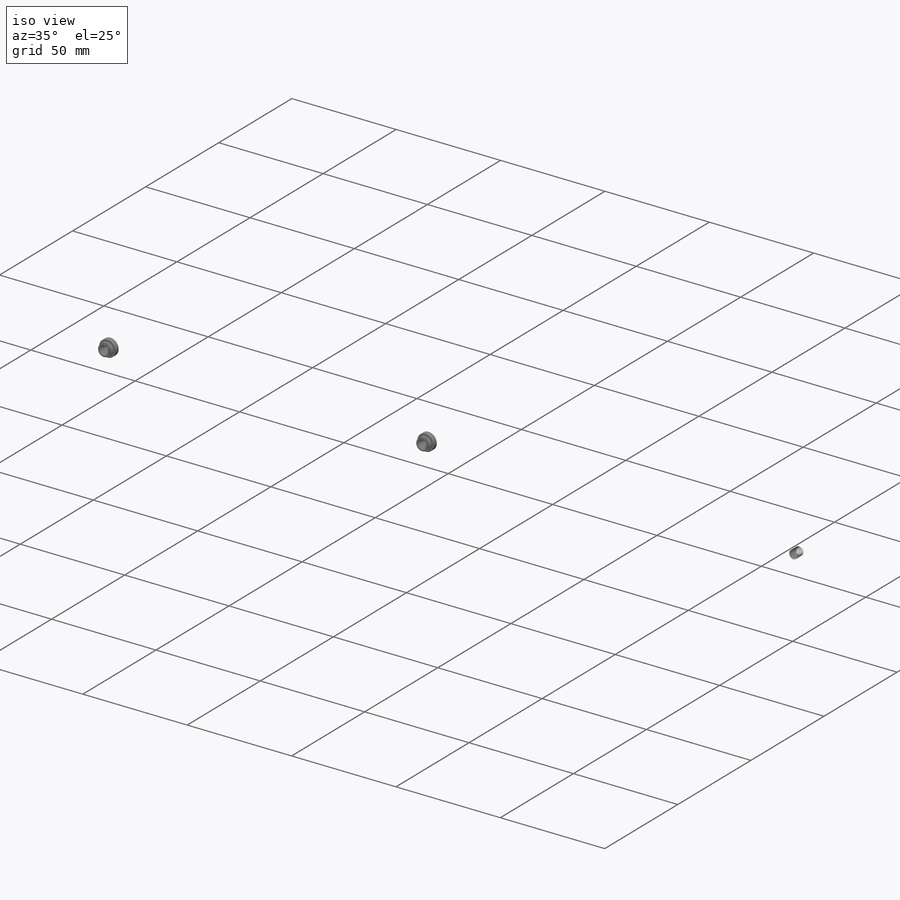
[diagram: iso view]
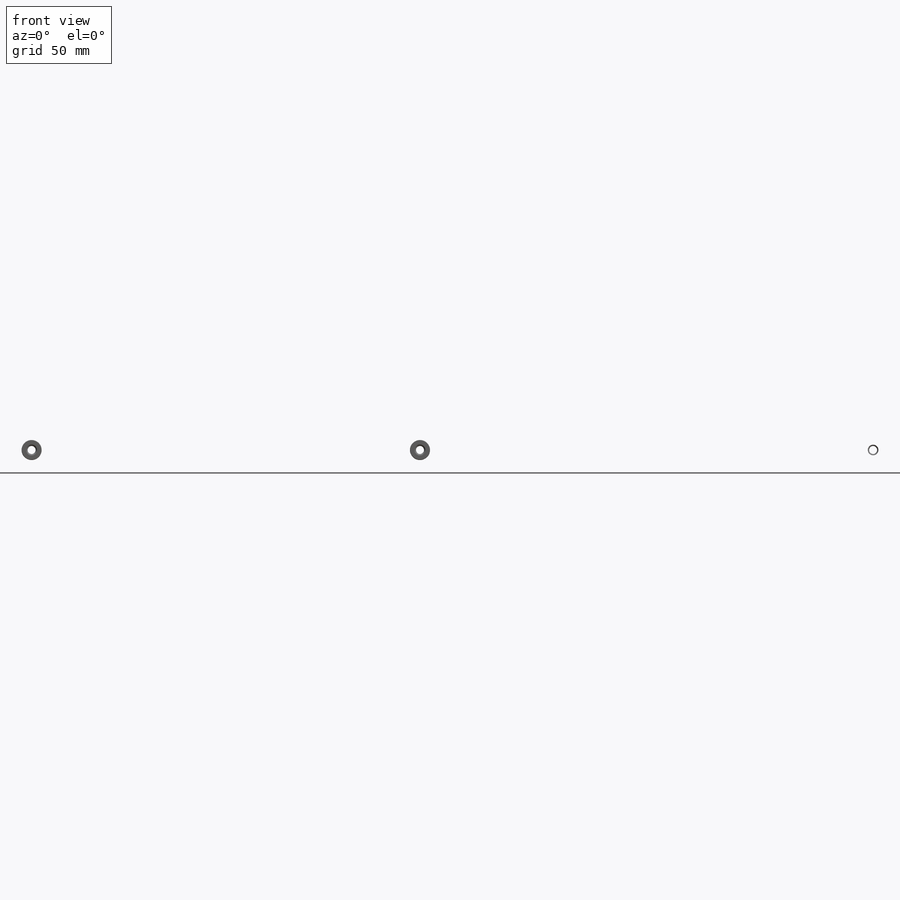
[diagram: front view]
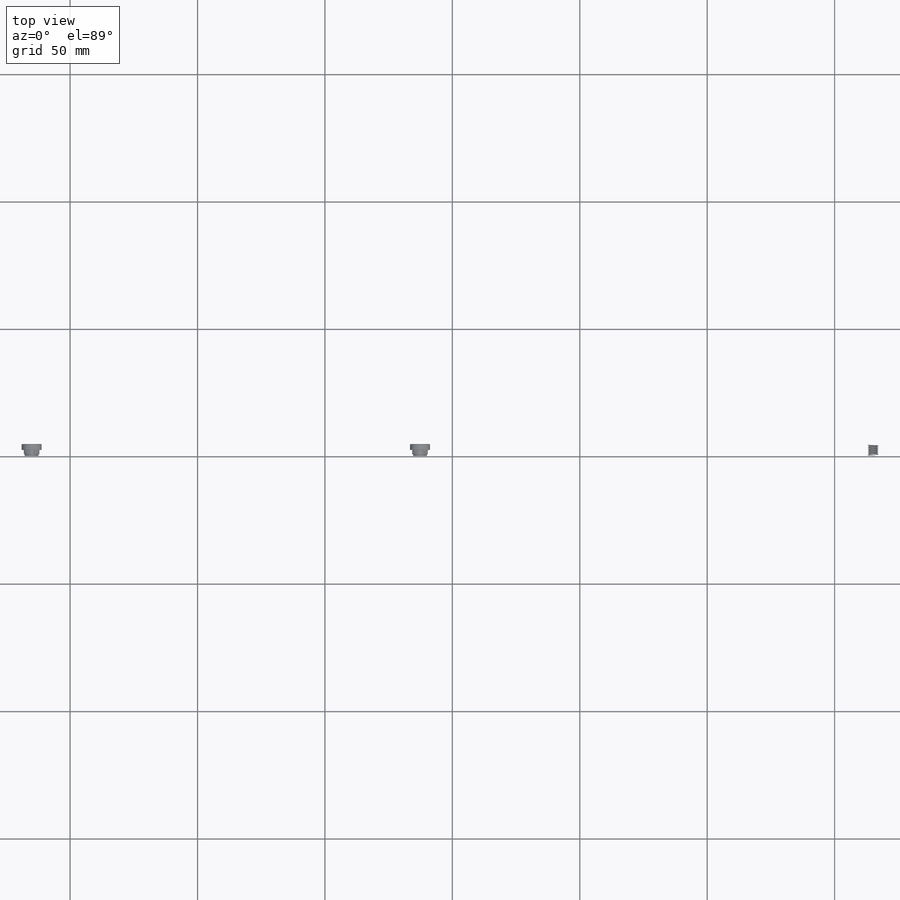
[diagram: top view]
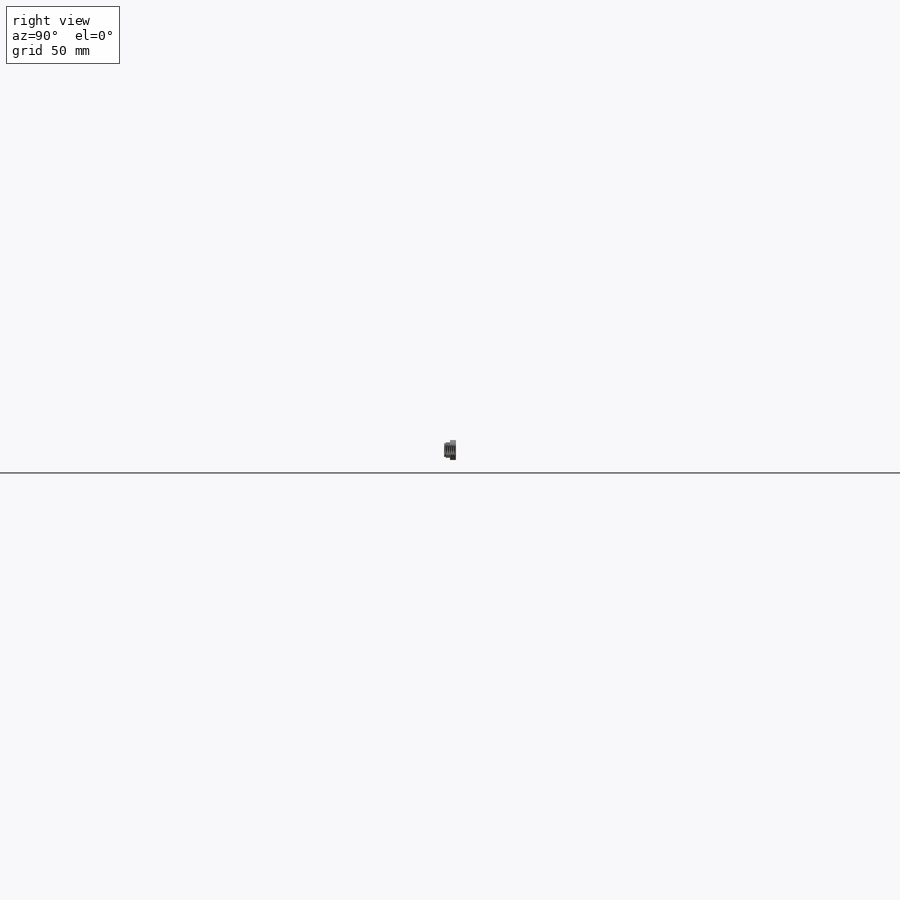
[diagram: right view]
SOLIDWORKS PART (.sldprt)
format: sldprt  version: not decoded by parser v0  size: 11,317,248 bytes
history: native  units: mm
features: sketch x23, extrude x11, move_body x11, cut_extrude x10, fillet x4, mirror x4, plane x2, material x1 + 11 further entries (+67 scaffold rows collapsed; 55 parser-record rows omitted)
feature tree (199):
  scaffold x67  (default folders/planes/origin — collapsed)
  material  "Material <not specified>"
  sketch  "Sketch1"
  extrude  "Boss-Extrude1"  [1 undecoded]
  sketch  "Sketch2"  dims[c1.D1=5.4102mm c1.D2=15.875mm c1.D3=15.875mm c2.D2=12.7mm c2.D3=12.7mm]
  cut_extrude  "Cut-Extrude1"  Depth=508mm
  sketch  "Sketch3"  dims[D1=5.4102mm D2=76.2mm]
  cut_extrude  "Cut-Extrude2"  Depth=5.08mm
  sketch  "Sketch5"  dims[D1=5.4102mm]
  cut_extrude  "Cut-Extrude4"  Depth=12.7mm
  sketch  "Sketch6"  dims[D1=0.0mm]
  extrude  "Boss-Extrude2"  [1 undecoded]
  sketch  "Sketch7"  dims[D1=0.0mm]
  extrude  "Boss-Extrude3"  [1 undecoded]
  sketch  "Sketch8"
  cut_extrude  "Cut-Extrude5"  [1 undecoded]
  sketch  "Sketch11"  dims[c1.D2=5.4102mm c1.D3=5.4102mm c1.D6=5.4102mm c1.D1=19.05mm c1.D4=19.05mm c1.D5=12.7mm c2.D4=19.05mm c2.D6=12.7mm c2.D7=12.7mm c2.D8=19.05mm c3.D7=19.05mm]
  extrude  "Boss-Extrude4"  Depth=2.54mm
  sketch  "Sketch12"  dims[c1.D1=38.1mm c1.D2=3.175mm c2.D1=0.0mm c2.D2=0.0mm]
  extrude  "Boss-Extrude5"  Depth=2.54mm
  sketch  "Sketch13"
  extrude  "Boss-Extrude6"  [1 undecoded]
  sketch  "Sketch16"  dims[D1=25.4mm D2=12.7mm D3=25.4mm D4=19.05mm]
  extrude  "Boss-Extrude7"  [1 undecoded]
  fillet  "Fillet4"  Radius=6.35mm
  sketch  "Sketch17"  dims[D1=6.604mm]
  cut_extrude  "Cut-Extrude8"  Depth=5.08mm
  "96439A360"
  parser-record x55  (decoder bookkeeping rows leaked as tree rows — omitted from the tree; the rows remain in map.json)
  move_body  "Body-Move/Copy4"
  "96439A3602"
  move_body  "Body-Move/Copy6"
  "96439A3603"
  move_body  "Body-Move/Copy8"
  "96439A3604"
  move_body  "Body-Move/Copy10"
  "96439A3605"
  move_body  "Body-Move/Copy12"
  plane  "Plane1"
  mirror  "Mirror3"
  "96439A3607"
  move_body  "Body-Move/Copy18"
  "96439A3608"
  move_body  "Body-Move/Copy20"
  sketch  "Sketch18"
  "96439A3609"
  move_body  "Body-Move/Copy22"
  sketch  "Sketch21"  dims[D1=12.7mm]
  cut_extrude  "Cut-Extrude11"  Depth=7.62mm
  sketch  "Sketch22"
  extrude  "Boss-Extrude9"  [1 undecoded]
  mirror  "Mirror4"
  plane  "Plane2"
  mirror  "Mirror5"
  sketch  "Sketch23"  dims[D1=4.7625mm D2=25.4mm D3=25.4mm D4=22.988mm]
  cut_extrude  "Cut-Extrude12"  Depth=7.62mm
  sketch  "Sketch26"
  extrude  "Boss-Extrude11"  [1 undecoded]
  sketch  "Sketch9"  dims[D1=25.4mm D2=25.4mm]
  cut_extrude  "Cut-Extrude6"  [1 undecoded]
  sketch  "Sketch27"  dims[D1=6.604mm]
  cut_extrude  "Cut-Extrude13"  Depth=12.7mm
  fillet  "Fillet5"  Radius=6.35mm
  sketch  "Sketch30"
  sketch  "Sketch31"  dims[D1=6.35mm D2=25.4mm D3=19.05mm]
  extrude  "Boss-Extrude12"  Depth=2.54mm
  fillet  "Fillet6"  Radius=6.35mm
  sketch  "Sketch32"  dims[D1=19.05mm D2=25.4mm]
  extrude  "Boss-Extrude13"  Depth=2.54mm
  fillet  "Fillet7"  Radius=6.35mm
  "96439A36010"
  move_body  "Body-Move/Copy24"
  "96439A36011"
  move_body  "Body-Move/Copy26"
  mirror  "Mirror6"
  "96439A36012"
  move_body  "Body-Move/Copy28"
  sketch  "Sketch33"
  cut_extrude  "Cut-Extrude14"  Depth=5.08mm
decode coverage: 31 of 63 modeling features carry decoded parameters; 11 rows unclassified (native names shown)
note: 9 parameter values undecoded
summary: no parameter record found for 9 features
note: suppression state not decoded; provenance and decode notes live in map.json
